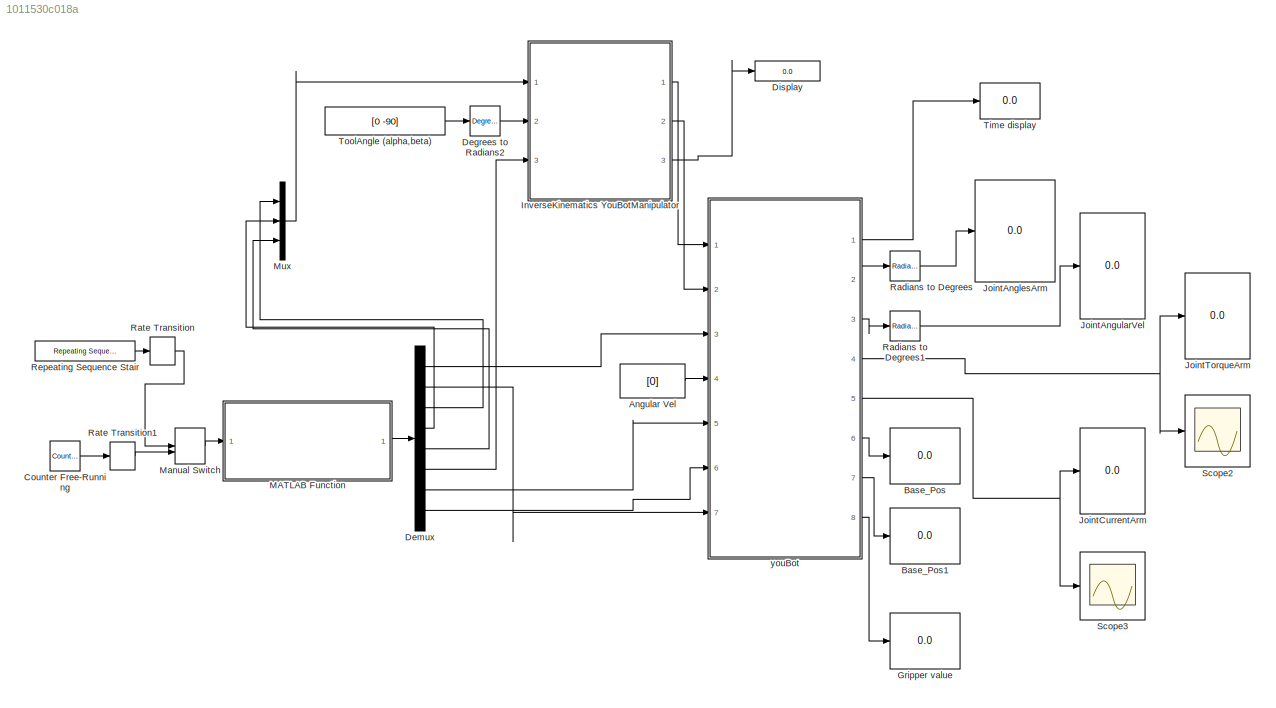
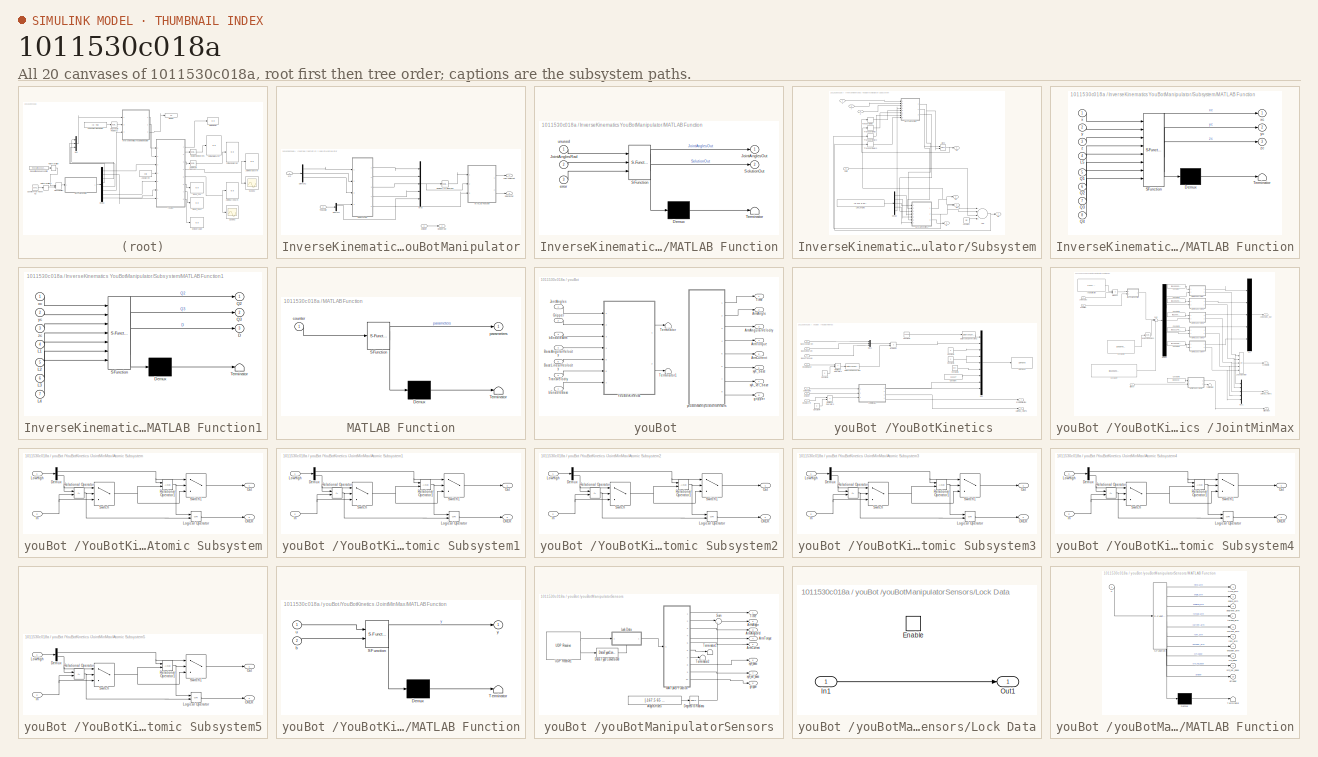
[diagram: thumbnail index - all 20 canvases of the model, root first then tree order]
MODEL slx_1011530c018a
KIND model
CONFIG AbsTol = auto
CONFIG EnableMultiTasking = on
CONFIG FixedStep = auto
CONFIG MaxStep = auto
CONFIG MinStep = auto
CONFIG RelTol = 1e-3
CONFIG SampleTimeConstraint = Unconstrained
CONFIG Solver = FixedStepAuto
CONFIG SolverName = FixedStepAuto
CONFIG StartTime = 0.0
CONFIG StopTime = inf
BLOCK [Constant] Angular Vel
  Value = [0]
BLOCK [Display] Base_Pos
  Decimation = 1
  Ports = [1]
BLOCK [Display] Base_Pos1
  Decimation = 1
  Ports = [1]
BLOCK [Reference] Counter Free-Running  REF=simulink/Sources/Counter
Free-Running
  Ports = [0, 1]
  SourceBlock = simulink/Sources/Counter\nFree-Running
  SourceProductBaseCode = SL
  SourceProductName = Simulink
  SourceType = Counter Free-Running
BLOCK [Reference] Degrees to Radians2  REF=simulink_extras/Transformations/Degrees to
Radians
  Ports = [1, 1]
  SourceBlock = simulink_extras/Transformations/Degrees to\nRadians
  SourceProductBaseCode = SL
  SourceProductName = Simulink
  SourceType = DegreesToRadians
BLOCK [Demux] Demux
  DisplayOption = bar
  Outputs = 8
  Ports = [1, 8]
BLOCK [Display] Display
  Decimation = 1
  Ports = [1]
BLOCK [Display] Gripper value
  Decimation = 1
  Ports = [1]
BLOCK [SubSystem] InverseKinematics YouBotManipulator
  Ports = [3, 3]
  RequestExecContextInheritance = off
  Variant = off
BLOCK [Demux] InverseKinematics YouBotManipulator/Demux1
  DisplayOption = bar
  Outputs = 2
  Ports = [1, 2]
BLOCK [Demux] InverseKinematics YouBotManipulator/Demux2
  DisplayOption = bar
  Outputs = 3
  Ports = [1, 3]
BLOCK [Inport] InverseKinematics YouBotManipulator/Gripper
  IconDisplay = Port number
  Port = 3
BLOCK [Outport] InverseKinematics YouBotManipulator/GripperOut 
  IconDisplay = Port number
  Port = 2
BLOCK [Outport] InverseKinematics YouBotManipulator/JointAnglesOut
  IconDisplay = Port number
BLOCK [SubSystem] InverseKinematics YouBotManipulator/MATLAB Function
  ErrorFcn = Stateflow.Translate.translate
  PermitHierarchicalResolution = ExplicitOnly
  Ports = [3, 2]
  RequestExecContextInheritance = off
  SFBlockType = MATLAB Function
  TreatAsAtomicUnit = on
  Variant = off
BLOCK [Demux] InverseKinematics YouBotManipulator/MATLAB Function/ Demux 
  Outputs = 1
  Ports = [1, 1]
BLOCK [S-Function] InverseKinematics YouBotManipulator/MATLAB Function/ SFunction 
  EnableBusSupport = on
  FunctionName = sf_sfun
  PortCounts = [3 3]
  Ports = [3, 3]
  SFcnIsStateOwnerBlock = off
  SFunctionDeploymentMode = off
  Tag = Stateflow S-Function FinalSimulinkBlock 13
BLOCK [Terminator] InverseKinematics YouBotManipulator/MATLAB Function/ Terminator 
BLOCK [Outport] InverseKinematics YouBotManipulator/MATLAB Function/JointAnglesOut
  IconDisplay = Port number
BLOCK [Inport] InverseKinematics YouBotManipulator/MATLAB Function/JointAnglesRad
  IconDisplay = Port number
  Port = 2
BLOCK [Outport] InverseKinematics YouBotManipulator/MATLAB Function/SolutionOut
  IconDisplay = Port number
  Port = 2
BLOCK [Inport] InverseKinematics YouBotManipulator/MATLAB Function/error
  IconDisplay = Port number
  Port = 3
BLOCK [Inport] InverseKinematics YouBotManipulator/MATLAB Function/unused
  IconDisplay = Port number
BLOCK [Mux] InverseKinematics YouBotManipulator/Mux
  DisplayOption = bar
  Inputs = 5
  Ports = [5, 1]
BLOCK [Reference] InverseKinematics YouBotManipulator/Radians to Degrees  REF=simulink_extras/Transformations/Radians
to Degrees
  Ports = [1, 1]
  SourceBlock = simulink_extras/Transformations/Radians\nto Degrees
  SourceProductBaseCode = SL
  SourceProductName = Simulink
  SourceType = RadiansToDegrees
BLOCK [Outport] InverseKinematics YouBotManipulator/SolutionOut
  IconDisplay = Port number
  Port = 3
BLOCK [SubSystem] InverseKinematics YouBotManipulator/Subsystem
  Ports = [4, 5]
  RequestExecContextInheritance = off
  Variant = off
BLOCK [Sum] InverseKinematics YouBotManipulator/Subsystem/Add
  InputSameDT = off
  Inputs = ---+
  OutDataTypeStr = Inherit: Inherit via internal rule
  Ports = [4, 1]
  SaturateOnIntegerOverflow = off
BLOCK [Trigonometry] InverseKinematics YouBotManipulator/Subsystem/Atan2
  Operator = atan2
  Ports = [2, 1]
BLOCK [Constant] InverseKinematics YouBotManipulator/Subsystem/Constant
  Value = pi/2
BLOCK [Outport] InverseKinematics YouBotManipulator/Subsystem/D
  IconDisplay = Port number
  Port = 5
BLOCK [Demux] InverseKinematics YouBotManipulator/Subsystem/Demux
  DisplayOption = bar
  Outputs = 5
  Ports = [1, 5]
BLOCK [Constant] InverseKinematics YouBotManipulator/Subsystem/Link Lengths
  Value = [0.147 0.046 0.155 0.135 0.218 ]
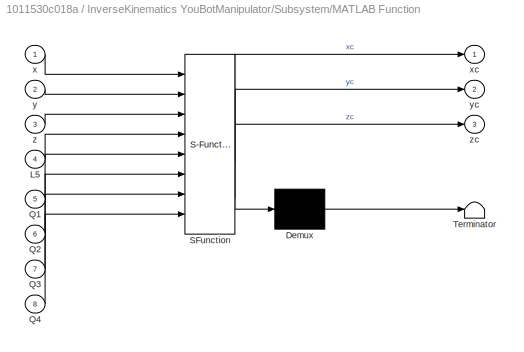
BLOCK [SubSystem] InverseKinematics YouBotManipulator/Subsystem/MATLAB Function
  ErrorFcn = Stateflow.Translate.translate
  PermitHierarchicalResolution = ExplicitOnly
  Ports = [8, 3]
  RequestExecContextInheritance = off
  SFBlockType = MATLAB Function
  TreatAsAtomicUnit = on
  Variant = off
BLOCK [Demux] InverseKinematics YouBotManipulator/Subsystem/MATLAB Function/ Demux 
  Outputs = 1
  Ports = [1, 1]
BLOCK [S-Function] InverseKinematics YouBotManipulator/Subsystem/MATLAB Function/ SFunction 
  EnableBusSupport = on
  FunctionName = sf_sfun
  PortCounts = [8 4]
  Ports = [8, 4]
  SFcnIsStateOwnerBlock = off
  SFunctionDeploymentMode = off
  Tag = Stateflow S-Function FinalSimulinkBlock 14
BLOCK [Terminator] InverseKinematics YouBotManipulator/Subsystem/MATLAB Function/ Terminator 
BLOCK [Inport] InverseKinematics YouBotManipulator/Subsystem/MATLAB Function/L5
  IconDisplay = Port number
  Port = 4
BLOCK [Inport] InverseKinematics YouBotManipulator/Subsystem/MATLAB Function/Q1
  IconDisplay = Port number
  Port = 5
BLOCK [Inport] InverseKinematics YouBotManipulator/Subsystem/MATLAB Function/Q2
  IconDisplay = Port number
  Port = 6
BLOCK [Inport] InverseKinematics YouBotManipulator/Subsystem/MATLAB Function/Q3
  IconDisplay = Port number
  Port = 7
BLOCK [Inport] InverseKinematics YouBotManipulator/Subsystem/MATLAB Function/Q4
  IconDisplay = Port number
  Port = 8
BLOCK [Inport] InverseKinematics YouBotManipulator/Subsystem/MATLAB Function/x
  IconDisplay = Port number
BLOCK [Outport] InverseKinematics YouBotManipulator/Subsystem/MATLAB Function/xc
  IconDisplay = Port number
BLOCK [Inport] InverseKinematics YouBotManipulator/Subsystem/MATLAB Function/y
  IconDisplay = Port number
  Port = 2
BLOCK [Outport] InverseKinematics YouBotManipulator/Subsystem/MATLAB Function/yc
  IconDisplay = Port number
  Port = 2
BLOCK [Inport] InverseKinematics YouBotManipulator/Subsystem/MATLAB Function/z
  IconDisplay = Port number
  Port = 3
BLOCK [Outport] InverseKinematics YouBotManipulator/Subsystem/MATLAB Function/zc
  IconDisplay = Port number
  Port = 3
BLOCK [SubSystem] InverseKinematics YouBotManipulator/Subsystem/MATLAB Function1
  ErrorFcn = Stateflow.Translate.translate
  PermitHierarchicalResolution = ExplicitOnly
  Ports = [7, 3]
  RequestExecContextInheritance = off
  SFBlockType = MATLAB Function
  TreatAsAtomicUnit = on
  Variant = off
BLOCK [Demux] InverseKinematics YouBotManipulator/Subsystem/MATLAB Function1/ Demux 
  Outputs = 1
  Ports = [1, 1]
BLOCK [S-Function] InverseKinematics YouBotManipulator/Subsystem/MATLAB Function1/ SFunction 
  EnableBusSupport = on
  FunctionName = sf_sfun
  PortCounts = [7 4]
  Ports = [7, 4]
  SFcnIsStateOwnerBlock = off
  SFunctionDeploymentMode = off
  Tag = Stateflow S-Function FinalSimulinkBlock 15
BLOCK [Terminator] InverseKinematics YouBotManipulator/Subsystem/MATLAB Function1/ Terminator 
BLOCK [Outport] InverseKinematics YouBotManipulator/Subsystem/MATLAB Function1/D
  IconDisplay = Port number
  Port = 3
BLOCK [Inport] InverseKinematics YouBotManipulator/Subsystem/MATLAB Function1/L1
  IconDisplay = Port number
  Port = 4
BLOCK [Inport] InverseKinematics YouBotManipulator/Subsystem/MATLAB Function1/L2
  IconDisplay = Port number
  Port = 5
BLOCK [Inport] InverseKinematics YouBotManipulator/Subsystem/MATLAB Function1/L3
  IconDisplay = Port number
  Port = 6
BLOCK [Inport] InverseKinematics YouBotManipulator/Subsystem/MATLAB Function1/L4
  IconDisplay = Port number
  Port = 7
BLOCK [Outport] InverseKinematics YouBotManipulator/Subsystem/MATLAB Function1/Q2
  IconDisplay = Port number
BLOCK [Outport] InverseKinematics YouBotManipulator/Subsystem/MATLAB Function1/Q3
  IconDisplay = Port number
  Port = 2
BLOCK [Inport] InverseKinematics YouBotManipulator/Subsystem/MATLAB Function1/xc
  IconDisplay = Port number
BLOCK [Inport] InverseKinematics YouBotManipulator/Subsystem/MATLAB Function1/yc
  IconDisplay = Port number
  Port = 2
BLOCK [Inport] InverseKinematics YouBotManipulator/Subsystem/MATLAB Function1/zc
  IconDisplay = Port number
  Port = 3
BLOCK [Outport] InverseKinematics YouBotManipulator/Subsystem/Q1
  IconDisplay = Port number
BLOCK [Outport] InverseKinematics YouBotManipulator/Subsystem/Q2
  IconDisplay = Port number
  Port = 2
BLOCK [Outport] InverseKinematics YouBotManipulator/Subsystem/Q3
  IconDisplay = Port number
  Port = 3
BLOCK [Outport] InverseKinematics YouBotManipulator/Subsystem/Q4
  IconDisplay = Port number
  Port = 4
BLOCK [TransportDelay] InverseKinematics YouBotManipulator/Subsystem/Transport Delay
  Ports = [1, 1]
BLOCK [TransportDelay] InverseKinematics YouBotManipulator/Subsystem/Transport Delay1
  Ports = [1, 1]
BLOCK [TransportDelay] InverseKinematics YouBotManipulator/Subsystem/Transport Delay2
  Ports = [1, 1]
BLOCK [TransportDelay] InverseKinematics YouBotManipulator/Subsystem/Transport Delay3
  Ports = [1, 1]
BLOCK [Inport] InverseKinematics YouBotManipulator/Subsystem/beta
  IconDisplay = Port number
  Port = 4
BLOCK [Inport] InverseKinematics YouBotManipulator/Subsystem/x
  IconDisplay = Port number
BLOCK [Inport] InverseKinematics YouBotManipulator/Subsystem/y
  IconDisplay = Port number
  Port = 2
BLOCK [Inport] InverseKinematics YouBotManipulator/Subsystem/z
  IconDisplay = Port number
  Port = 3
BLOCK [Inport] InverseKinematics YouBotManipulator/ToolAngle
  IconDisplay = Port number
  Port = 2
BLOCK [Inport] InverseKinematics YouBotManipulator/xyz 
  IconDisplay = Port number
BLOCK [Display] JointAnglesArm
  Decimation = 1
  Ports = [1]
BLOCK [Display] JointAngularVel
  Decimation = 1
  Ports = [1]
BLOCK [Display] JointCurrentArm
  Decimation = 1
  Ports = [1]
BLOCK [Display] JointTorqueArm 
  Decimation = 1
  Ports = [1]
BLOCK [SubSystem] MATLAB Function
  ErrorFcn = Stateflow.Translate.translate
  PermitHierarchicalResolution = ExplicitOnly
  Ports = [1, 1]
  RequestExecContextInheritance = off
  SFBlockType = MATLAB Function
  TreatAsAtomicUnit = on
  Variant = off
BLOCK [Demux] MATLAB Function/ Demux 
  Outputs = 1
  Ports = [1, 1]
BLOCK [S-Function] MATLAB Function/ SFunction 
  EnableBusSupport = on
  FunctionName = sf_sfun
  PortCounts = [1 2]
  Ports = [1, 2]
  SFcnIsStateOwnerBlock = off
  SFunctionDeploymentMode = off
  Tag = Stateflow S-Function FinalSimulinkBlock 1
BLOCK [Terminator] MATLAB Function/ Terminator 
BLOCK [Inport] MATLAB Function/counter
  IconDisplay = Port number
BLOCK [Outport] MATLAB Function/parameters
  IconDisplay = Port number
BLOCK [ManualSwitch] Manual Switch
  CurrentSetting = 0
BLOCK [Mux] Mux
  DisplayOption = bar
  Inputs = 3
  Ports = [3, 1]
BLOCK [Reference] Radians to Degrees  REF=simulink_extras/Transformations/Radians
to Degrees
  Ports = [1, 1]
  SourceBlock = simulink_extras/Transformations/Radians\nto Degrees
  SourceProductBaseCode = SL
  SourceProductName = Simulink
  SourceType = RadiansToDegrees
BLOCK [Reference] Radians to Degrees1  REF=simulink_extras/Transformations/Radians
to Degrees
  Ports = [1, 1]
  SourceBlock = simulink_extras/Transformations/Radians\nto Degrees
  SourceProductBaseCode = SL
  SourceProductName = Simulink
  SourceType = RadiansToDegrees
BLOCK [RateTransition] Rate Transition
BLOCK [RateTransition] Rate Transition1
BLOCK [Reference] Repeating Sequence Stair  REF=simulink/Sources/Repeating
Sequence
Stair
  Ports = [0, 1]
  SourceBlock = simulink/Sources/Repeating\nSequence\nStair
  SourceProductBaseCode = SL
  SourceProductName = Simulink
  SourceType = Repeating Sequence Stair
BLOCK [Scope] Scope2
  NumInputPorts = 1
  Ports = [1]
  ScopeSpecificationString = Simulink.scopes.TimeScopeBlockCfg('CurrentConfiguration', extmgr.ConfigurationSet(extmgr.Configuration('Core','General UI',true),extmgr.Configuration('Core','Source UI',true),extmgr.Configuration('Sources','WiredSimulink',true,'DataLoggingVariableName','ScopeData1','DataLoggingSaveFormat','StructureWithTime','DataLoggingLimitDataPoints',true,'DataLoggingDecimation','1','DataLoggingDecimateData',tr...<+1786ch>
BLOCK [Scope] Scope3
  NumInputPorts = 1
  Ports = [1]
  ScopeSpecificationString = Simulink.scopes.TimeScopeBlockCfg('CurrentConfiguration', extmgr.ConfigurationSet(extmgr.Configuration('Core','General UI',true),extmgr.Configuration('Core','Source UI',true),extmgr.Configuration('Sources','WiredSimulink',true,'DataLoggingSaveFormat','StructureWithTime','DataLoggingLimitDataPoints',true,'DataLoggingDecimation','1','DataLoggingDecimateData',true),extmgr.Configuration('Visuals','Tim...<+872ch>
BLOCK [Display] Time display
  Decimation = 1
  Ports = [1]
BLOCK [Constant] ToolAngle (alpha,beta)
  Value = [0 -90]
BLOCK [SubSystem] youBot 
  Ports = [7, 8]
  RequestExecContextInheritance = off
  TreatAsAtomicUnit = on
  Variant = off
BLOCK [Outport] youBot /ArmAngle
  IconDisplay = Port number
  Port = 2
BLOCK [Outport] youBot /ArmAngularVelocity
  IconDisplay = Port number
  Port = 3
BLOCK [Outport] youBot /ArmCurrent
  IconDisplay = Port number
  Port = 5
BLOCK [Outport] youBot /ArmTorque
  IconDisplay = Port number
  Port = 4
BLOCK [Inport] youBot /BaseAngularVelocity 
  IconDisplay = Port number
  Port = 4
BLOCK [Inport] youBot /BaseLinearVeolocity
  IconDisplay = Port number
  Port = 5
BLOCK [Inport] youBot /Gripper
  IconDisplay = Port number
  Port = 2
BLOCK [Inport] youBot /JontAngles
  IconDisplay = Port number
BLOCK [Terminator] youBot /Terminator
BLOCK [Terminator] youBot /Terminator1
BLOCK [Outport] youBot /Time
  IconDisplay = Port number
BLOCK [Inport] youBot /TransVelocity
  IconDisplay = Port number
  Port = 6
BLOCK [SubSystem] youBot /YouBotKinetics 
  Ports = [7, 2]
  RequestExecContextInheritance = off
  Variant = off
BLOCK [Inport] youBot /YouBotKinetics /BaseAngularVel
  IconDisplay = Port number
  Port = 4
BLOCK [Inport] youBot /YouBotKinetics /BaseLinearVel
  IconDisplay = Port number
  Port = 5
BLOCK [Inport] youBot /YouBotKinetics /BaseTransVel
  IconDisplay = Port number
  Port = 6
BLOCK [Constant] youBot /YouBotKinetics /Constant
  Value = 111117
BLOCK [Constant] youBot /YouBotKinetics /Constant1
  Value = 21930
BLOCK [Constant] youBot /YouBotKinetics /Constant2
  Value = 0
BLOCK [Constant] youBot /YouBotKinetics /Constant3
  Value = 0
BLOCK [Constant] youBot /YouBotKinetics /Constant4
  Value = 0
BLOCK [Constant] youBot /YouBotKinetics /Constant5
  Value = 0
BLOCK [Constant] youBot /YouBotKinetics /Constant6
  Value = [0 0]
BLOCK [DataTypeConversion] youBot /YouBotKinetics /Data Type Conversion
  RndMeth = Floor
  SaturateOnIntegerOverflow = off
BLOCK [DataTypeConversion] youBot /YouBotKinetics /Data Type Conversion2
  OutDataTypeStr = double
  RndMeth = Floor
  SaturateOnIntegerOverflow = off
BLOCK [Inport] youBot /YouBotKinetics /EnableArm
  IconDisplay = Port number
  Port = 3
BLOCK [Inport] youBot /YouBotKinetics /EnableBase 
  IconDisplay = Port number
  Port = 7
BLOCK [Inport] youBot /YouBotKinetics /Gripper
  IconDisplay = Port number
  Port = 2
BLOCK [Inport] youBot /YouBotKinetics /JointAngles
  IconDisplay = Port number
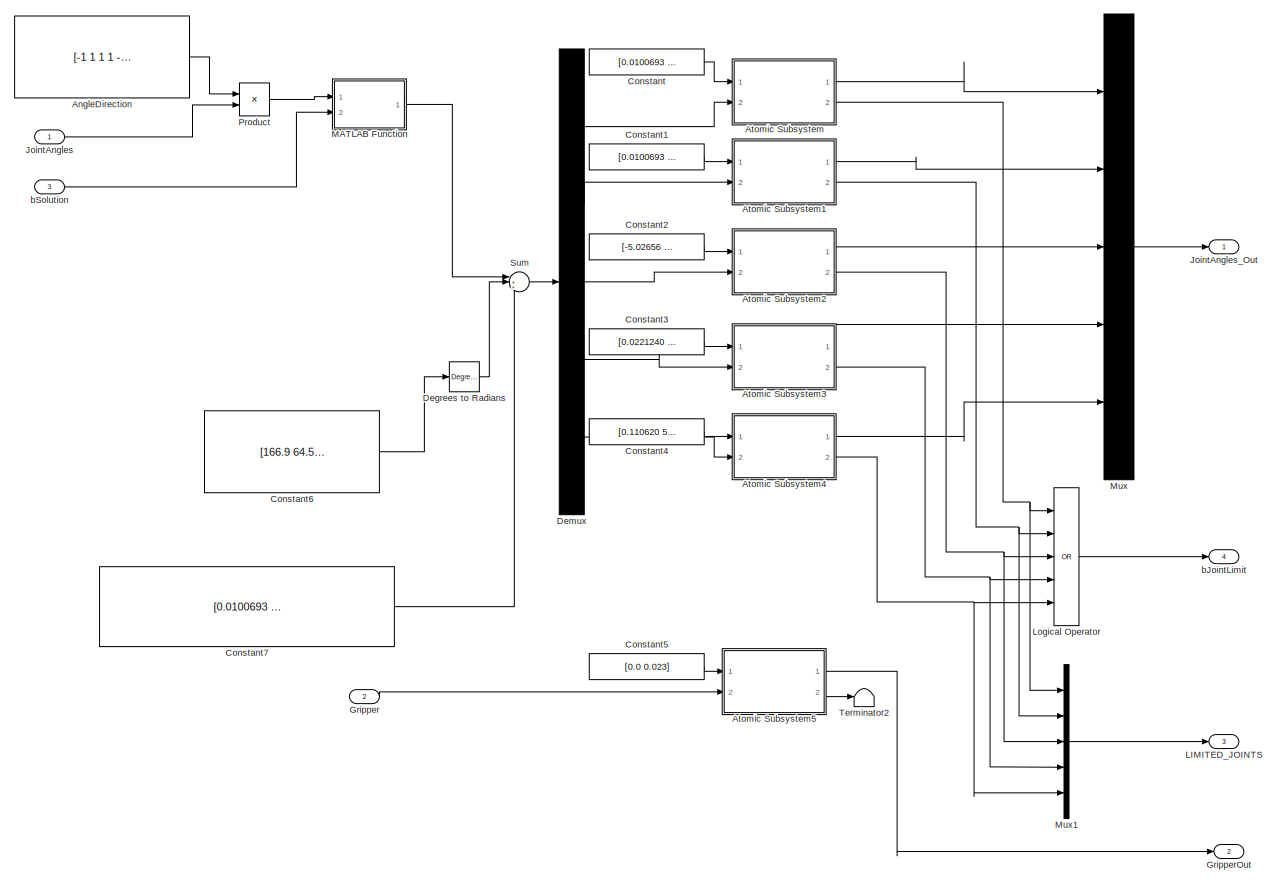
[diagram: youBot /YouBotKinetics /JointMinMax - part 1/1, most of the canvas]
BLOCK [SubSystem] youBot /YouBotKinetics /JointMinMax
  Ports = [3, 4]
  RequestExecContextInheritance = off
  Variant = off
BLOCK [Constant] youBot /YouBotKinetics /JointMinMax/AngleDirection
  Value = [-1 1 1 1 -1]
BLOCK [SubSystem] youBot /YouBotKinetics /JointMinMax/Atomic Subsystem
  Ports = [2, 2]
  RequestExecContextInheritance = off
  TreatAsAtomicUnit = on
  Variant = off
BLOCK [Demux] youBot /YouBotKinetics /JointMinMax/Atomic Subsystem/Demux
  DisplayOption = bar
  Outputs = 2
  Ports = [1, 2]
BLOCK [Inport] youBot /YouBotKinetics /JointMinMax/Atomic Subsystem/In
  IconDisplay = Port number
  Port = 2
BLOCK [Logic] youBot /YouBotKinetics /JointMinMax/Atomic Subsystem/Logical Operator
  AllPortsSameDT = off
  Operator = OR
  OutDataTypeStr = boolean
  Ports = [2, 1]
BLOCK [Inport] youBot /YouBotKinetics /JointMinMax/Atomic Subsystem/LowHigh
  IconDisplay = Port number
BLOCK [Outport] youBot /YouBotKinetics /JointMinMax/Atomic Subsystem/OVER
  IconDisplay = Port number
  Port = 2
BLOCK [Outport] youBot /YouBotKinetics /JointMinMax/Atomic Subsystem/Out
  IconDisplay = Port number
BLOCK [RelationalOperator] youBot /YouBotKinetics /JointMinMax/Atomic Subsystem/Relational Operator
  InputSameDT = off
  Operator = <=
  OutDataTypeStr = boolean
  Ports = [2, 1]
BLOCK [RelationalOperator] youBot /YouBotKinetics /JointMinMax/Atomic Subsystem/Relational Operator1
  InputSameDT = off
  OutDataTypeStr = boolean
  Ports = [2, 1]
BLOCK [Switch] youBot /YouBotKinetics /JointMinMax/Atomic Subsystem/Switch
  InputSameDT = off
  SaturateOnIntegerOverflow = off
BLOCK [Switch] youBot /YouBotKinetics /JointMinMax/Atomic Subsystem/Switch1
  InputSameDT = off
  SaturateOnIntegerOverflow = off
BLOCK [SubSystem] youBot /YouBotKinetics /JointMinMax/Atomic Subsystem1
  Ports = [2, 2]
  RequestExecContextInheritance = off
  TreatAsAtomicUnit = on
  Variant = off
BLOCK [Demux] youBot /YouBotKinetics /JointMinMax/Atomic Subsystem1/Demux
  DisplayOption = bar
  Outputs = 2
  Ports = [1, 2]
BLOCK [Inport] youBot /YouBotKinetics /JointMinMax/Atomic Subsystem1/In
  IconDisplay = Port number
  Port = 2
BLOCK [Logic] youBot /YouBotKinetics /JointMinMax/Atomic Subsystem1/Logical Operator
  AllPortsSameDT = off
  Operator = OR
  OutDataTypeStr = boolean
  Ports = [2, 1]
BLOCK [Inport] youBot /YouBotKinetics /JointMinMax/Atomic Subsystem1/LowHigh
  IconDisplay = Port number
BLOCK [Outport] youBot /YouBotKinetics /JointMinMax/Atomic Subsystem1/OVER
  IconDisplay = Port number
  Port = 2
BLOCK [Outport] youBot /YouBotKinetics /JointMinMax/Atomic Subsystem1/Out
  IconDisplay = Port number
BLOCK [RelationalOperator] youBot /YouBotKinetics /JointMinMax/Atomic Subsystem1/Relational Operator
  InputSameDT = off
  Operator = <=
  OutDataTypeStr = boolean
  Ports = [2, 1]
BLOCK [RelationalOperator] youBot /YouBotKinetics /JointMinMax/Atomic Subsystem1/Relational Operator1
  InputSameDT = off
  OutDataTypeStr = boolean
  Ports = [2, 1]
BLOCK [Switch] youBot /YouBotKinetics /JointMinMax/Atomic Subsystem1/Switch
  InputSameDT = off
  SaturateOnIntegerOverflow = off
BLOCK [Switch] youBot /YouBotKinetics /JointMinMax/Atomic Subsystem1/Switch1
  InputSameDT = off
  SaturateOnIntegerOverflow = off
BLOCK [SubSystem] youBot /YouBotKinetics /JointMinMax/Atomic Subsystem2
  Ports = [2, 2]
  RequestExecContextInheritance = off
  TreatAsAtomicUnit = on
  Variant = off
BLOCK [Demux] youBot /YouBotKinetics /JointMinMax/Atomic Subsystem2/Demux
  DisplayOption = bar
  Outputs = 2
  Ports = [1, 2]
BLOCK [Inport] youBot /YouBotKinetics /JointMinMax/Atomic Subsystem2/In
  IconDisplay = Port number
  Port = 2
BLOCK [Logic] youBot /YouBotKinetics /JointMinMax/Atomic Subsystem2/Logical Operator
  AllPortsSameDT = off
  Operator = OR
  OutDataTypeStr = boolean
  Ports = [2, 1]
BLOCK [Inport] youBot /YouBotKinetics /JointMinMax/Atomic Subsystem2/LowHigh
  IconDisplay = Port number
BLOCK [Outport] youBot /YouBotKinetics /JointMinMax/Atomic Subsystem2/OVER
  IconDisplay = Port number
  Port = 2
BLOCK [Outport] youBot /YouBotKinetics /JointMinMax/Atomic Subsystem2/Out
  IconDisplay = Port number
BLOCK [RelationalOperator] youBot /YouBotKinetics /JointMinMax/Atomic Subsystem2/Relational Operator
  InputSameDT = off
  Operator = <=
  OutDataTypeStr = boolean
  Ports = [2, 1]
BLOCK [RelationalOperator] youBot /YouBotKinetics /JointMinMax/Atomic Subsystem2/Relational Operator1
  InputSameDT = off
  OutDataTypeStr = boolean
  Ports = [2, 1]
BLOCK [Switch] youBot /YouBotKinetics /JointMinMax/Atomic Subsystem2/Switch
  InputSameDT = off
  SaturateOnIntegerOverflow = off
BLOCK [Switch] youBot /YouBotKinetics /JointMinMax/Atomic Subsystem2/Switch1
  InputSameDT = off
  SaturateOnIntegerOverflow = off
BLOCK [SubSystem] youBot /YouBotKinetics /JointMinMax/Atomic Subsystem3
  Ports = [2, 2]
  RequestExecContextInheritance = off
  TreatAsAtomicUnit = on
  Variant = off
BLOCK [Demux] youBot /YouBotKinetics /JointMinMax/Atomic Subsystem3/Demux
  DisplayOption = bar
  Outputs = 2
  Ports = [1, 2]
BLOCK [Inport] youBot /YouBotKinetics /JointMinMax/Atomic Subsystem3/In
  IconDisplay = Port number
  Port = 2
BLOCK [Logic] youBot /YouBotKinetics /JointMinMax/Atomic Subsystem3/Logical Operator
  AllPortsSameDT = off
  Operator = OR
  OutDataTypeStr = boolean
  Ports = [2, 1]
BLOCK [Inport] youBot /YouBotKinetics /JointMinMax/Atomic Subsystem3/LowHigh
  IconDisplay = Port number
BLOCK [Outport] youBot /YouBotKinetics /JointMinMax/Atomic Subsystem3/OVER
  IconDisplay = Port number
  Port = 2
BLOCK [Outport] youBot /YouBotKinetics /JointMinMax/Atomic Subsystem3/Out
  IconDisplay = Port number
BLOCK [RelationalOperator] youBot /YouBotKinetics /JointMinMax/Atomic Subsystem3/Relational Operator
  InputSameDT = off
  Operator = <=
  OutDataTypeStr = boolean
  Ports = [2, 1]
BLOCK [RelationalOperator] youBot /YouBotKinetics /JointMinMax/Atomic Subsystem3/Relational Operator1
  InputSameDT = off
  OutDataTypeStr = boolean
  Ports = [2, 1]
BLOCK [Switch] youBot /YouBotKinetics /JointMinMax/Atomic Subsystem3/Switch
  InputSameDT = off
  SaturateOnIntegerOverflow = off
BLOCK [Switch] youBot /YouBotKinetics /JointMinMax/Atomic Subsystem3/Switch1
  InputSameDT = off
  SaturateOnIntegerOverflow = off
BLOCK [SubSystem] youBot /YouBotKinetics /JointMinMax/Atomic Subsystem4
  Ports = [2, 2]
  RequestExecContextInheritance = off
  TreatAsAtomicUnit = on
  Variant = off
BLOCK [Demux] youBot /YouBotKinetics /JointMinMax/Atomic Subsystem4/Demux
  DisplayOption = bar
  Outputs = 2
  Ports = [1, 2]
BLOCK [Inport] youBot /YouBotKinetics /JointMinMax/Atomic Subsystem4/In
  IconDisplay = Port number
  Port = 2
BLOCK [Logic] youBot /YouBotKinetics /JointMinMax/Atomic Subsystem4/Logical Operator
  AllPortsSameDT = off
  Operator = OR
  OutDataTypeStr = boolean
  Ports = [2, 1]
BLOCK [Inport] youBot /YouBotKinetics /JointMinMax/Atomic Subsystem4/LowHigh
  IconDisplay = Port number
BLOCK [Outport] youBot /YouBotKinetics /JointMinMax/Atomic Subsystem4/OVER
  IconDisplay = Port number
  Port = 2
BLOCK [Outport] youBot /YouBotKinetics /JointMinMax/Atomic Subsystem4/Out
  IconDisplay = Port number
BLOCK [RelationalOperator] youBot /YouBotKinetics /JointMinMax/Atomic Subsystem4/Relational Operator
  InputSameDT = off
  Operator = <=
  OutDataTypeStr = boolean
  Ports = [2, 1]
BLOCK [RelationalOperator] youBot /YouBotKinetics /JointMinMax/Atomic Subsystem4/Relational Operator1
  InputSameDT = off
  OutDataTypeStr = boolean
  Ports = [2, 1]
BLOCK [Switch] youBot /YouBotKinetics /JointMinMax/Atomic Subsystem4/Switch
  InputSameDT = off
  SaturateOnIntegerOverflow = off
BLOCK [Switch] youBot /YouBotKinetics /JointMinMax/Atomic Subsystem4/Switch1
  InputSameDT = off
  SaturateOnIntegerOverflow = off
BLOCK [SubSystem] youBot /YouBotKinetics /JointMinMax/Atomic Subsystem5
  Ports = [2, 2]
  RequestExecContextInheritance = off
  TreatAsAtomicUnit = on
  Variant = off
BLOCK [Demux] youBot /YouBotKinetics /JointMinMax/Atomic Subsystem5/Demux
  DisplayOption = bar
  Outputs = 2
  Ports = [1, 2]
BLOCK [Inport] youBot /YouBotKinetics /JointMinMax/Atomic Subsystem5/In
  IconDisplay = Port number
  Port = 2
BLOCK [Logic] youBot /YouBotKinetics /JointMinMax/Atomic Subsystem5/Logical Operator
  AllPortsSameDT = off
  Operator = OR
  OutDataTypeStr = boolean
  Ports = [2, 1]
BLOCK [Inport] youBot /YouBotKinetics /JointMinMax/Atomic Subsystem5/LowHigh
  IconDisplay = Port number
BLOCK [Outport] youBot /YouBotKinetics /JointMinMax/Atomic Subsystem5/OVER
  IconDisplay = Port number
  Port = 2
BLOCK [Outport] youBot /YouBotKinetics /JointMinMax/Atomic Subsystem5/Out
  IconDisplay = Port number
BLOCK [RelationalOperator] youBot /YouBotKinetics /JointMinMax/Atomic Subsystem5/Relational Operator
  InputSameDT = off
  Operator = <=
  OutDataTypeStr = boolean
  Ports = [2, 1]
BLOCK [RelationalOperator] youBot /YouBotKinetics /JointMinMax/Atomic Subsystem5/Relational Operator1
  InputSameDT = off
  OutDataTypeStr = boolean
  Ports = [2, 1]
BLOCK [Switch] youBot /YouBotKinetics /JointMinMax/Atomic Subsystem5/Switch
  InputSameDT = off
  SaturateOnIntegerOverflow = off
BLOCK [Switch] youBot /YouBotKinetics /JointMinMax/Atomic Subsystem5/Switch1
  InputSameDT = off
  SaturateOnIntegerOverflow = off
BLOCK [Constant] youBot /YouBotKinetics /JointMinMax/Constant
  Value = [0.0100693 5.84013]
BLOCK [Constant] youBot /YouBotKinetics /JointMinMax/Constant1
  Value = [0.0100693 2.61798]
BLOCK [Constant] youBot /YouBotKinetics /JointMinMax/Constant2
  Value = [-5.02656  -0.015708]
BLOCK [Constant] youBot /YouBotKinetics /JointMinMax/Constant3
  Value = [0.0221240 3.4291]
BLOCK [Constant] youBot /YouBotKinetics /JointMinMax/Constant4
  Value = [0.110620 5.64158]
BLOCK [Constant] youBot /YouBotKinetics /JointMinMax/Constant5
  Value = [0.0 0.023]
BLOCK [Constant] youBot /YouBotKinetics /JointMinMax/Constant6
  Value = [166.9 64.5 -143 98 164]
BLOCK [Constant] youBot /YouBotKinetics /JointMinMax/Constant7
  Value = [0.0100693 0.0100693 -0.015708 0.0221240 0.110620]
BLOCK [Reference] youBot /YouBotKinetics /JointMinMax/Degrees to Radians  REF=simulink_extras/Transformations/Degrees to
Radians
  Ports = [1, 1]
  SourceBlock = simulink_extras/Transformations/Degrees to\nRadians
  SourceProductBaseCode = SL
  SourceProductName = Simulink
  SourceType = DegreesToRadians
BLOCK [Demux] youBot /YouBotKinetics /JointMinMax/Demux
  DisplayOption = bar
  Outputs = [ 1 1 1 1 1]
  Ports = [1, 5]
BLOCK [Inport] youBot /YouBotKinetics /JointMinMax/Gripper
  IconDisplay = Port number
  Port = 2
BLOCK [Outport] youBot /YouBotKinetics /JointMinMax/GripperOut
  IconDisplay = Port number
  Port = 2
BLOCK [Inport] youBot /YouBotKinetics /JointMinMax/JointAngles
  IconDisplay = Port number
BLOCK [Outport] youBot /YouBotKinetics /JointMinMax/JointAngles_Out
  IconDisplay = Port number
BLOCK [Outport] youBot /YouBotKinetics /JointMinMax/LIMITED_JOINTS 
  IconDisplay = Port number
  Port = 3
BLOCK [Logic] youBot /YouBotKinetics /JointMinMax/Logical Operator
  AllPortsSameDT = off
  Inputs = 5
  Operator = OR
  OutDataTypeStr = boolean
  Ports = [5, 1]
BLOCK [SubSystem] youBot /YouBotKinetics /JointMinMax/MATLAB Function
  ErrorFcn = Stateflow.Translate.translate
  PermitHierarchicalResolution = ExplicitOnly
  Ports = [2, 1]
  RequestExecContextInheritance = off
  SFBlockType = MATLAB Function
  TreatAsAtomicUnit = on
  Variant = off
BLOCK [Demux] youBot /YouBotKinetics /JointMinMax/MATLAB Function/ Demux 
  Outputs = 1
  Ports = [1, 1]
BLOCK [S-Function] youBot /YouBotKinetics /JointMinMax/MATLAB Function/ SFunction 
  EnableBusSupport = on
  FunctionName = sf_sfun
  PortCounts = [2 2]
  Ports = [2, 2]
  SFcnIsStateOwnerBlock = off
  SFunctionDeploymentMode = off
  Tag = Stateflow S-Function FinalSimulinkBlock 2
BLOCK [Terminator] youBot /YouBotKinetics /JointMinMax/MATLAB Function/ Terminator 
BLOCK [Inport] youBot /YouBotKinetics /JointMinMax/MATLAB Function/b
  IconDisplay = Port number
  Port = 2
BLOCK [Inport] youBot /YouBotKinetics /JointMinMax/MATLAB Function/u
  IconDisplay = Port number
BLOCK [Outport] youBot /YouBotKinetics /JointMinMax/MATLAB Function/y
  IconDisplay = Port number
BLOCK [Mux] youBot /YouBotKinetics /JointMinMax/Mux
  DisplayOption = bar
  Inputs = [1 1 1 1 1]
  Ports = [5, 1]
BLOCK [Mux] youBot /YouBotKinetics /JointMinMax/Mux1
  DisplayOption = bar
  Inputs = 5
  Ports = [5, 1]
BLOCK [Product] youBot /YouBotKinetics /JointMinMax/Product
  InputSameDT = off
  OutDataTypeStr = Inherit: Inherit via internal rule
  Ports = [2, 1]
  RndMeth = Floor
  SaturateOnIntegerOverflow = off
BLOCK [Sum] youBot /YouBotKinetics /JointMinMax/Sum
  IconShape = round
  InputSameDT = off
  Inputs = |+++
  OutDataTypeStr = Inherit: Inherit via internal rule
  Ports = [3, 1]
  SaturateOnIntegerOverflow = off
BLOCK [Terminator] youBot /YouBotKinetics /JointMinMax/Terminator2
BLOCK [Outport] youBot /YouBotKinetics /JointMinMax/bJointLimit 
  IconDisplay = Port number
  Port = 4
BLOCK [Inport] youBot /YouBotKinetics /JointMinMax/bSolution
  IconDisplay = Port number
  Port = 3
BLOCK [Outport] youBot /YouBotKinetics /LIMITED_JOINTS 
  IconDisplay = Port number
  Port = 2
BLOCK [Mux] youBot /YouBotKinetics /Mux
  DisplayOption = bar
  Inputs = [1 3 1 1 1 2 1 5 1]
  Ports = [9, 1]
BLOCK [Mux] youBot /YouBotKinetics /Mux1
  DisplayOption = bar
  Inputs = [1 1 1]
  Ports = [3, 1]
BLOCK [Product] youBot /YouBotKinetics /Product
  InputSameDT = off
  OutDataTypeStr = Inherit: Inherit via internal rule
  Ports = [2, 1]
  RndMeth = Floor
  SaturateOnIntegerOverflow = off
BLOCK [RelationalOperator] youBot /YouBotKinetics /Relational Operator1
  InputSameDT = off
  Operator = >
  OutDataTypeStr = boolean
  Ports = [2, 1]
BLOCK [RelationalOperator] youBot /YouBotKinetics /Relational Operator3
  InputSameDT = off
  Operator = >
  OutDataTypeStr = boolean
  Ports = [2, 1]
BLOCK [Reference] youBot /YouBotKinetics /UDP Send  REF=embdlinuxlib/UDP Send
  Ports = [1]
  SourceBlock = embdlinuxlib/UDP Send
  SourceProductBaseCode = RASPPI
  SourceProductName = Simulink Support Package for Raspberry Pi Hardware
  SourceType = UDP Send
BLOCK [Outport] youBot /YouBotKinetics /bJointLimitActive
  IconDisplay = Port number
BLOCK [Inport] youBot /bEnableArm
  IconDisplay = Port number
  Port = 3
BLOCK [Inport] youBot /bEnableBase
  IconDisplay = Port number
  Port = 7
BLOCK [Outport] youBot /gripper
  IconDisplay = Port number
  Port = 8
BLOCK [Outport] youBot /xyh_base
  IconDisplay = Port number
  Port = 6
BLOCK [Outport] youBot /xyh_vel_base
  IconDisplay = Port number
  Port = 7
BLOCK [SubSystem] youBot /youBotManipulatorSensors
  Ports = [0, 8]
  RequestExecContextInheritance = off
  Variant = off
BLOCK [Constant] youBot /youBotManipulatorSensors/AngleOffsets
  Value = [-167.5 65 -143.9 99.27 -170]
BLOCK [Outport] youBot /youBotManipulatorSensors/ArmAngle
  IconDisplay = Port number
  Port = 2
BLOCK [Outport] youBot /youBotManipulatorSensors/ArmAngleVel
  IconDisplay = Port number
  Port = 3
BLOCK [Outport] youBot /youBotManipulatorSensors/ArmCurrent 
  IconDisplay = Port number
  Port = 5
BLOCK [Outport] youBot /youBotManipulatorSensors/ArmTorque
  IconDisplay = Port number
  Port = 4
BLOCK [DataTypeConversion] youBot /youBotManipulatorSensors/Data Type Conversion8
  RndMeth = Floor
  SaturateOnIntegerOverflow = off
BLOCK [Reference] youBot /youBotManipulatorSensors/Degrees to Radians  REF=simulink_extras/Transformations/Degrees to
Radians
  Ports = [1, 1]
  SourceBlock = simulink_extras/Transformations/Degrees to\nRadians
  SourceProductBaseCode = SL
  SourceProductName = Simulink
  SourceType = DegreesToRadians
BLOCK [SubSystem] youBot /youBotManipulatorSensors/Lock Data
  Ports = [1, 1, 1]
  RequestExecContextInheritance = off
  TreatAsAtomicUnit = on
  Variant = off
BLOCK [EnablePort] youBot /youBotManipulatorSensors/Lock Data/Enable
  Ports = []
BLOCK [Inport] youBot /youBotManipulatorSensors/Lock Data/In1
  IconDisplay = Port number
BLOCK [Outport] youBot /youBotManipulatorSensors/Lock Data/Out1
  IconDisplay = Port number
BLOCK [SubSystem] youBot /youBotManipulatorSensors/MATLAB Function
  ErrorFcn = Stateflow.Translate.translate
  PermitHierarchicalResolution = ExplicitOnly
  Ports = [1, 10]
  RequestExecContextInheritance = off
  SFBlockType = MATLAB Function
  TreatAsAtomicUnit = on
  Variant = off
BLOCK [Demux] youBot /youBotManipulatorSensors/MATLAB Function/ Demux 
  Outputs = 1
  Ports = [1, 1]
BLOCK [S-Function] youBot /youBotManipulatorSensors/MATLAB Function/ SFunction 
  EnableBusSupport = on
  FunctionName = sf_sfun
  PortCounts = [1 11]
  Ports = [1, 11]
  SFcnIsStateOwnerBlock = off
  SFunctionDeploymentMode = off
  Tag = Stateflow S-Function FinalSimulinkBlock 3
BLOCK [Terminator] youBot /youBotManipulatorSensors/MATLAB Function/ Terminator 
BLOCK [Outport] youBot /youBotManipulatorSensors/MATLAB Function/angle_arm
  IconDisplay = Port number
  Port = 2
BLOCK [Outport] youBot /youBotManipulatorSensors/MATLAB Function/anglevel_arm
  IconDisplay = Port number
  Port = 3
BLOCK [Outport] youBot /youBotManipulatorSensors/MATLAB Function/current_arm
  IconDisplay = Port number
  Port = 5
BLOCK [Outport] youBot /youBotManipulatorSensors/MATLAB Function/encoder_arm
  IconDisplay = Port number
  Port = 7
BLOCK [Outport] youBot /youBotManipulatorSensors/MATLAB Function/gripper
  IconDisplay = Port number
  Port = 10
BLOCK [Outport] youBot /youBotManipulatorSensors/MATLAB Function/rpm_arm
  IconDisplay = Port number
  Port = 6
BLOCK [Outport] youBot /youBotManipulatorSensors/MATLAB Function/time_arm
  IconDisplay = Port number
BLOCK [Outport] youBot /youBotManipulatorSensors/MATLAB Function/torque_arm
  IconDisplay = Port number
  Port = 4
BLOCK [Inport] youBot /youBotManipulatorSensors/MATLAB Function/u
  IconDisplay = Port number
BLOCK [Outport] youBot /youBotManipulatorSensors/MATLAB Function/xyh_base
  IconDisplay = Port number
  Port = 8
BLOCK [Outport] youBot /youBotManipulatorSensors/MATLAB Function/xyh_vel_base
  IconDisplay = Port number
  Port = 9
BLOCK [Sum] youBot /youBotManipulatorSensors/Sum
  IconShape = round
  InputSameDT = off
  Inputs = |+-
  OutDataTypeStr = Inherit: Inherit via internal rule
  Ports = [2, 1]
  SaturateOnIntegerOverflow = off
BLOCK [Terminator] youBot /youBotManipulatorSensors/Terminator1
BLOCK [Terminator] youBot /youBotManipulatorSensors/Terminator2
BLOCK [Outport] youBot /youBotManipulatorSensors/Time
  IconDisplay = Port number
BLOCK [Reference] youBot /youBotManipulatorSensors/UDP Receive1  REF=embdlinuxlib/UDP Receive
  Ports = [0, 2]
  SourceBlock = embdlinuxlib/UDP Receive
  SourceProductBaseCode = RASPPI
  SourceProductName = Simulink Support Package for Raspberry Pi Hardware
  SourceType = UDP Receive
BLOCK [Outport] youBot /youBotManipulatorSensors/gripper
  IconDisplay = Port number
  Port = 8
BLOCK [Outport] youBot /youBotManipulatorSensors/xyh_base
  IconDisplay = Port number
  Port = 6
BLOCK [Outport] youBot /youBotManipulatorSensors/xyh_vel_base
  IconDisplay = Port number
  Port = 7
LINE Angular Vel:1 -> youBot :4
LINE Counter Free-Running:1 -> Rate Transition1:1
LINE Degrees to Radians2:1 -> InverseKinematics YouBotManipulator:2
LINE Demux:1 -> youBot :3
LINE Demux:2 -> youBot :7
LINE Demux:3 -> Mux:1
LINE Demux:4 -> Mux:2
LINE Demux:5 -> Mux:3
LINE Demux:6 -> InverseKinematics YouBotManipulator:3
LINE Demux:7 -> youBot :5
LINE Demux:8 -> youBot :6
LINE InverseKinematics YouBotManipulator/Demux1:1 -> InverseKinematics YouBotManipulator/Mux:5
LINE InverseKinematics YouBotManipulator/Demux1:2 -> InverseKinematics YouBotManipulator/Subsystem:4
LINE InverseKinematics YouBotManipulator/Demux2:1 -> InverseKinematics YouBotManipulator/Subsystem:1
LINE InverseKinematics YouBotManipulator/Demux2:2 -> InverseKinematics YouBotManipulator/Subsystem:2
LINE InverseKinematics YouBotManipulator/Demux2:3 -> InverseKinematics YouBotManipulator/Subsystem:3
LINE InverseKinematics YouBotManipulator/Gripper:1 -> InverseKinematics YouBotManipulator/GripperOut :1
LINE InverseKinematics YouBotManipulator/MATLAB Function:1 -> InverseKinematics YouBotManipulator/JointAnglesOut:1
LINE InverseKinematics YouBotManipulator/MATLAB Function:2 -> InverseKinematics YouBotManipulator/SolutionOut:1
NET InverseKinematics YouBotManipulator/Mux:1 -> InverseKinematics YouBotManipulator/MATLAB Function:2, InverseKinematics YouBotManipulator/Radians to Degrees:1
LINE InverseKinematics YouBotManipulator/Radians to Degrees:1 -> InverseKinematics YouBotManipulator/MATLAB Function:1
NET InverseKinematics YouBotManipulator/Subsystem/Add:1 -> InverseKinematics YouBotManipulator/Subsystem/Q4:1, InverseKinematics YouBotManipulator/Subsystem/Transport Delay3:1
NET InverseKinematics YouBotManipulator/Subsystem/Atan2:1 -> InverseKinematics YouBotManipulator/Subsystem/Q1:1, InverseKinematics YouBotManipulator/Subsystem/Transport Delay:1
LINE InverseKinematics YouBotManipulator/Subsystem/Constant:1 -> InverseKinematics YouBotManipulator/Subsystem/Add:4
LINE InverseKinematics YouBotManipulator/Subsystem/Demux:1 -> InverseKinematics YouBotManipulator/Subsystem/MATLAB Function1:4
LINE InverseKinematics YouBotManipulator/Subsystem/Demux:2 -> InverseKinematics YouBotManipulator/Subsystem/MATLAB Function1:5
LINE InverseKinematics YouBotManipulator/Subsystem/Demux:3 -> InverseKinematics YouBotManipulator/Subsystem/MATLAB Function1:6
LINE InverseKinematics YouBotManipulator/Subsystem/Demux:4 -> InverseKinematics YouBotManipulator/Subsystem/MATLAB Function1:7
LINE InverseKinematics YouBotManipulator/Subsystem/Demux:5 -> InverseKinematics YouBotManipulator/Subsystem/MATLAB Function:4
LINE InverseKinematics YouBotManipulator/Subsystem/Link Lengths:1 -> InverseKinematics YouBotManipulator/Subsystem/Demux:1
NET InverseKinematics YouBotManipulator/Subsystem/MATLAB Function1:1 -> InverseKinematics YouBotManipulator/Subsystem/Add:1, InverseKinematics YouBotManipulator/Subsystem/Q2:1, InverseKinematics YouBotManipulator/Subsystem/Transport Delay1:1
NET InverseKinematics YouBotManipulator/Subsystem/MATLAB Function1:2 -> InverseKinematics YouBotManipulator/Subsystem/Add:2, InverseKinematics YouBotManipulator/Subsystem/Q3:1, InverseKinematics YouBotManipulator/Subsystem/Transport Delay2:1
LINE InverseKinematics YouBotManipulator/Subsystem/MATLAB Function1:3 -> InverseKinematics YouBotManipulator/Subsystem/D:1
NET InverseKinematics YouBotManipulator/Subsystem/MATLAB Function:1 -> InverseKinematics YouBotManipulator/Subsystem/Atan2:2, InverseKinematics YouBotManipulator/Subsystem/MATLAB Function1:1
NET InverseKinematics YouBotManipulator/Subsystem/MATLAB Function:2 -> InverseKinematics YouBotManipulator/Subsystem/Atan2:1, InverseKinematics YouBotManipulator/Subsystem/MATLAB Function1:2
LINE InverseKinematics YouBotManipulator/Subsystem/MATLAB Function:3 -> InverseKinematics YouBotManipulator/Subsystem/MATLAB Function1:3
LINE InverseKinematics YouBotManipulator/Subsystem/Transport Delay1:1 -> InverseKinematics YouBotManipulator/Subsystem/MATLAB Function:6
LINE InverseKinematics YouBotManipulator/Subsystem/Transport Delay2:1 -> InverseKinematics YouBotManipulator/Subsystem/MATLAB Function:7
LINE InverseKinematics YouBotManipulator/Subsystem/Transport Delay3:1 -> InverseKinematics YouBotManipulator/Subsystem/MATLAB Function:8
LINE InverseKinematics YouBotManipulator/Subsystem/Transport Delay:1 -> InverseKinematics YouBotManipulator/Subsystem/MATLAB Function:5
LINE InverseKinematics YouBotManipulator/Subsystem/beta:1 -> InverseKinematics YouBotManipulator/Subsystem/Add:3
LINE InverseKinematics YouBotManipulator/Subsystem/x:1 -> InverseKinematics YouBotManipulator/Subsystem/MATLAB Function:1
LINE InverseKinematics YouBotManipulator/Subsystem/y:1 -> InverseKinematics YouBotManipulator/Subsystem/MATLAB Function:2
LINE InverseKinematics YouBotManipulator/Subsystem/z:1 -> InverseKinematics YouBotManipulator/Subsystem/MATLAB Function:3
LINE InverseKinematics YouBotManipulator/Subsystem:1 -> InverseKinematics YouBotManipulator/Mux:1
LINE InverseKinematics YouBotManipulator/Subsystem:2 -> InverseKinematics YouBotManipulator/Mux:2
LINE InverseKinematics YouBotManipulator/Subsystem:3 -> InverseKinematics YouBotManipulator/Mux:3
LINE InverseKinematics YouBotManipulator/Subsystem:4 -> InverseKinematics YouBotManipulator/Mux:4
LINE InverseKinematics YouBotManipulator/Subsystem:5 -> InverseKinematics YouBotManipulator/MATLAB Function:3
LINE InverseKinematics YouBotManipulator/ToolAngle:1 -> InverseKinematics YouBotManipulator/Demux1:1
LINE InverseKinematics YouBotManipulator/xyz :1 -> InverseKinematics YouBotManipulator/Demux2:1
LINE InverseKinematics YouBotManipulator:1 -> youBot :1
LINE InverseKinematics YouBotManipulator:2 -> youBot :2
LINE InverseKinematics YouBotManipulator:3 -> Display:1
LINE MATLAB Function:1 -> Demux:1
LINE Manual Switch:1 -> MATLAB Function:1
LINE Mux:1 -> InverseKinematics YouBotManipulator:1
LINE Radians to Degrees1:1 -> JointAngularVel:1
LINE Radians to Degrees:1 -> JointAnglesArm:1
LINE Rate Transition1:1 -> Manual Switch:2
LINE Rate Transition:1 -> Manual Switch:1
LINE Repeating Sequence Stair:1 -> Rate Transition:1
LINE ToolAngle (alpha,beta):1 -> Degrees to Radians2:1
LINE youBot /BaseAngularVelocity :1 -> youBot /YouBotKinetics :4
LINE youBot /BaseLinearVeolocity:1 -> youBot /YouBotKinetics :5
LINE youBot /Gripper:1 -> youBot /YouBotKinetics :2
LINE youBot /JontAngles:1 -> youBot /YouBotKinetics :1
LINE youBot /TransVelocity:1 -> youBot /YouBotKinetics :6
LINE youBot /YouBotKinetics /BaseAngularVel:1 -> youBot /YouBotKinetics /Mux1:1
LINE youBot /YouBotKinetics /BaseLinearVel:1 -> youBot /YouBotKinetics /Mux1:2
LINE youBot /YouBotKinetics /BaseTransVel:1 -> youBot /YouBotKinetics /Mux1:3
LINE youBot /YouBotKinetics /Constant1:1 -> youBot /YouBotKinetics /Data Type Conversion2:1
LINE youBot /YouBotKinetics /Constant2:1 -> youBot /YouBotKinetics /Relational Operator1:2
LINE youBot /YouBotKinetics /Constant3:1 -> youBot /YouBotKinetics /Mux:3
LINE youBot /YouBotKinetics /Constant4:1 -> youBot /YouBotKinetics /Relational Operator3:2
NET youBot /YouBotKinetics /Constant5:1 -> youBot /YouBotKinetics /Mux:4, youBot /YouBotKinetics /Mux:5
LINE youBot /YouBotKinetics /Constant6:1 -> youBot /YouBotKinetics /Mux:6
LINE youBot /YouBotKinetics /Constant:1 -> youBot /YouBotKinetics /Mux:7
LINE youBot /YouBotKinetics /Data Type Conversion2:1 -> youBot /YouBotKinetics /Mux:1
LINE youBot /YouBotKinetics /Data Type Conversion:1 -> youBot /YouBotKinetics /Product:2
LINE youBot /YouBotKinetics /EnableArm:1 -> youBot /YouBotKinetics /Relational Operator3:1
LINE youBot /YouBotKinetics /EnableBase :1 -> youBot /YouBotKinetics /Relational Operator1:1
LINE youBot /YouBotKinetics /Gripper:1 -> youBot /YouBotKinetics /JointMinMax:2
LINE youBot /YouBotKinetics /JointAngles:1 -> youBot /YouBotKinetics /JointMinMax:1
LINE youBot /YouBotKinetics /JointMinMax/AngleDirection:1 -> youBot /YouBotKinetics /JointMinMax/Product:1
NET youBot /YouBotKinetics /JointMinMax/Atomic Subsystem/Demux:1 -> youBot /YouBotKinetics /JointMinMax/Atomic Subsystem/Relational Operator1:1, youBot /YouBotKinetics /JointMinMax/Atomic Subsystem/Switch1:1
NET youBot /YouBotKinetics /JointMinMax/Atomic Subsystem/Demux:2 -> youBot /YouBotKinetics /JointMinMax/Atomic Subsystem/Relational Operator:1, youBot /YouBotKinetics /JointMinMax/Atomic Subsystem/Switch:1
NET youBot /YouBotKinetics /JointMinMax/Atomic Subsystem/In:1 -> youBot /YouBotKinetics /JointMinMax/Atomic Subsystem/Relational Operator:2, youBot /YouBotKinetics /JointMinMax/Atomic Subsystem/Switch:3
LINE youBot /YouBotKinetics /JointMinMax/Atomic Subsystem/Logical Operator:1 -> youBot /YouBotKinetics /JointMinMax/Atomic Subsystem/OVER:1
LINE youBot /YouBotKinetics /JointMinMax/Atomic Subsystem/LowHigh:1 -> youBot /YouBotKinetics /JointMinMax/Atomic Subsystem/Demux:1
NET youBot /YouBotKinetics /JointMinMax/Atomic Subsystem/Relational Operator1:1 -> youBot /YouBotKinetics /JointMinMax/Atomic Subsystem/Logical Operator:1, youBot /YouBotKinetics /JointMinMax/Atomic Subsystem/Switch1:2
NET youBot /YouBotKinetics /JointMinMax/Atomic Subsystem/Relational Operator:1 -> youBot /YouBotKinetics /JointMinMax/Atomic Subsystem/Logical Operator:2, youBot /YouBotKinetics /JointMinMax/Atomic Subsystem/Switch:2
LINE youBot /YouBotKinetics /JointMinMax/Atomic Subsystem/Switch1:1 -> youBot /YouBotKinetics /JointMinMax/Atomic Subsystem/Out:1
NET youBot /YouBotKinetics /JointMinMax/Atomic Subsystem/Switch:1 -> youBot /YouBotKinetics /JointMinMax/Atomic Subsystem/Relational Operator1:2, youBot /YouBotKinetics /JointMinMax/Atomic Subsystem/Switch1:3
NET youBot /YouBotKinetics /JointMinMax/Atomic Subsystem1/Demux:1 -> youBot /YouBotKinetics /JointMinMax/Atomic Subsystem1/Relational Operator1:1, youBot /YouBotKinetics /JointMinMax/Atomic Subsystem1/Switch1:1
NET youBot /YouBotKinetics /JointMinMax/Atomic Subsystem1/Demux:2 -> youBot /YouBotKinetics /JointMinMax/Atomic Subsystem1/Relational Operator:1, youBot /YouBotKinetics /JointMinMax/Atomic Subsystem1/Switch:1
NET youBot /YouBotKinetics /JointMinMax/Atomic Subsystem1/In:1 -> youBot /YouBotKinetics /JointMinMax/Atomic Subsystem1/Relational Operator:2, youBot /YouBotKinetics /JointMinMax/Atomic Subsystem1/Switch:3
LINE youBot /YouBotKinetics /JointMinMax/Atomic Subsystem1/Logical Operator:1 -> youBot /YouBotKinetics /JointMinMax/Atomic Subsystem1/OVER:1
LINE youBot /YouBotKinetics /JointMinMax/Atomic Subsystem1/LowHigh:1 -> youBot /YouBotKinetics /JointMinMax/Atomic Subsystem1/Demux:1
NET youBot /YouBotKinetics /JointMinMax/Atomic Subsystem1/Relational Operator1:1 -> youBot /YouBotKinetics /JointMinMax/Atomic Subsystem1/Logical Operator:1, youBot /YouBotKinetics /JointMinMax/Atomic Subsystem1/Switch1:2
NET youBot /YouBotKinetics /JointMinMax/Atomic Subsystem1/Relational Operator:1 -> youBot /YouBotKinetics /JointMinMax/Atomic Subsystem1/Logical Operator:2, youBot /YouBotKinetics /JointMinMax/Atomic Subsystem1/Switch:2
LINE youBot /YouBotKinetics /JointMinMax/Atomic Subsystem1/Switch1:1 -> youBot /YouBotKinetics /JointMinMax/Atomic Subsystem1/Out:1
NET youBot /YouBotKinetics /JointMinMax/Atomic Subsystem1/Switch:1 -> youBot /YouBotKinetics /JointMinMax/Atomic Subsystem1/Relational Operator1:2, youBot /YouBotKinetics /JointMinMax/Atomic Subsystem1/Switch1:3
LINE youBot /YouBotKinetics /JointMinMax/Atomic Subsystem1:1 -> youBot /YouBotKinetics /JointMinMax/Mux:2
NET youBot /YouBotKinetics /JointMinMax/Atomic Subsystem1:2 -> youBot /YouBotKinetics /JointMinMax/Logical Operator:2, youBot /YouBotKinetics /JointMinMax/Mux1:2
NET youBot /YouBotKinetics /JointMinMax/Atomic Subsystem2/Demux:1 -> youBot /YouBotKinetics /JointMinMax/Atomic Subsystem2/Relational Operator1:1, youBot /YouBotKinetics /JointMinMax/Atomic Subsystem2/Switch1:1
NET youBot /YouBotKinetics /JointMinMax/Atomic Subsystem2/Demux:2 -> youBot /YouBotKinetics /JointMinMax/Atomic Subsystem2/Relational Operator:1, youBot /YouBotKinetics /JointMinMax/Atomic Subsystem2/Switch:1
NET youBot /YouBotKinetics /JointMinMax/Atomic Subsystem2/In:1 -> youBot /YouBotKinetics /JointMinMax/Atomic Subsystem2/Relational Operator:2, youBot /YouBotKinetics /JointMinMax/Atomic Subsystem2/Switch:3
LINE youBot /YouBotKinetics /JointMinMax/Atomic Subsystem2/Logical Operator:1 -> youBot /YouBotKinetics /JointMinMax/Atomic Subsystem2/OVER:1
LINE youBot /YouBotKinetics /JointMinMax/Atomic Subsystem2/LowHigh:1 -> youBot /YouBotKinetics /JointMinMax/Atomic Subsystem2/Demux:1
NET youBot /YouBotKinetics /JointMinMax/Atomic Subsystem2/Relational Operator1:1 -> youBot /YouBotKinetics /JointMinMax/Atomic Subsystem2/Logical Operator:1, youBot /YouBotKinetics /JointMinMax/Atomic Subsystem2/Switch1:2
NET youBot /YouBotKinetics /JointMinMax/Atomic Subsystem2/Relational Operator:1 -> youBot /YouBotKinetics /JointMinMax/Atomic Subsystem2/Logical Operator:2, youBot /YouBotKinetics /JointMinMax/Atomic Subsystem2/Switch:2
LINE youBot /YouBotKinetics /JointMinMax/Atomic Subsystem2/Switch1:1 -> youBot /YouBotKinetics /JointMinMax/Atomic Subsystem2/Out:1
NET youBot /YouBotKinetics /JointMinMax/Atomic Subsystem2/Switch:1 -> youBot /YouBotKinetics /JointMinMax/Atomic Subsystem2/Relational Operator1:2, youBot /YouBotKinetics /JointMinMax/Atomic Subsystem2/Switch1:3
LINE youBot /YouBotKinetics /JointMinMax/Atomic Subsystem2:1 -> youBot /YouBotKinetics /JointMinMax/Mux:3
NET youBot /YouBotKinetics /JointMinMax/Atomic Subsystem2:2 -> youBot /YouBotKinetics /JointMinMax/Logical Operator:3, youBot /YouBotKinetics /JointMinMax/Mux1:3
NET youBot /YouBotKinetics /JointMinMax/Atomic Subsystem3/Demux:1 -> youBot /YouBotKinetics /JointMinMax/Atomic Subsystem3/Relational Operator1:1, youBot /YouBotKinetics /JointMinMax/Atomic Subsystem3/Switch1:1
NET youBot /YouBotKinetics /JointMinMax/Atomic Subsystem3/Demux:2 -> youBot /YouBotKinetics /JointMinMax/Atomic Subsystem3/Relational Operator:1, youBot /YouBotKinetics /JointMinMax/Atomic Subsystem3/Switch:1
NET youBot /YouBotKinetics /JointMinMax/Atomic Subsystem3/In:1 -> youBot /YouBotKinetics /JointMinMax/Atomic Subsystem3/Relational Operator:2, youBot /YouBotKinetics /JointMinMax/Atomic Subsystem3/Switch:3
LINE youBot /YouBotKinetics /JointMinMax/Atomic Subsystem3/Logical Operator:1 -> youBot /YouBotKinetics /JointMinMax/Atomic Subsystem3/OVER:1
LINE youBot /YouBotKinetics /JointMinMax/Atomic Subsystem3/LowHigh:1 -> youBot /YouBotKinetics /JointMinMax/Atomic Subsystem3/Demux:1
NET youBot /YouBotKinetics /JointMinMax/Atomic Subsystem3/Relational Operator1:1 -> youBot /YouBotKinetics /JointMinMax/Atomic Subsystem3/Logical Operator:1, youBot /YouBotKinetics /JointMinMax/Atomic Subsystem3/Switch1:2
NET youBot /YouBotKinetics /JointMinMax/Atomic Subsystem3/Relational Operator:1 -> youBot /YouBotKinetics /JointMinMax/Atomic Subsystem3/Logical Operator:2, youBot /YouBotKinetics /JointMinMax/Atomic Subsystem3/Switch:2
LINE youBot /YouBotKinetics /JointMinMax/Atomic Subsystem3/Switch1:1 -> youBot /YouBotKinetics /JointMinMax/Atomic Subsystem3/Out:1
NET youBot /YouBotKinetics /JointMinMax/Atomic Subsystem3/Switch:1 -> youBot /YouBotKinetics /JointMinMax/Atomic Subsystem3/Relational Operator1:2, youBot /YouBotKinetics /JointMinMax/Atomic Subsystem3/Switch1:3
LINE youBot /YouBotKinetics /JointMinMax/Atomic Subsystem3:1 -> youBot /YouBotKinetics /JointMinMax/Mux:4
NET youBot /YouBotKinetics /JointMinMax/Atomic Subsystem3:2 -> youBot /YouBotKinetics /JointMinMax/Logical Operator:4, youBot /YouBotKinetics /JointMinMax/Mux1:4
NET youBot /YouBotKinetics /JointMinMax/Atomic Subsystem4/Demux:1 -> youBot /YouBotKinetics /JointMinMax/Atomic Subsystem4/Relational Operator1:1, youBot /YouBotKinetics /JointMinMax/Atomic Subsystem4/Switch1:1
NET youBot /YouBotKinetics /JointMinMax/Atomic Subsystem4/Demux:2 -> youBot /YouBotKinetics /JointMinMax/Atomic Subsystem4/Relational Operator:1, youBot /YouBotKinetics /JointMinMax/Atomic Subsystem4/Switch:1
NET youBot /YouBotKinetics /JointMinMax/Atomic Subsystem4/In:1 -> youBot /YouBotKinetics /JointMinMax/Atomic Subsystem4/Relational Operator:2, youBot /YouBotKinetics /JointMinMax/Atomic Subsystem4/Switch:3
LINE youBot /YouBotKinetics /JointMinMax/Atomic Subsystem4/Logical Operator:1 -> youBot /YouBotKinetics /JointMinMax/Atomic Subsystem4/OVER:1
LINE youBot /YouBotKinetics /JointMinMax/Atomic Subsystem4/LowHigh:1 -> youBot /YouBotKinetics /JointMinMax/Atomic Subsystem4/Demux:1
NET youBot /YouBotKinetics /JointMinMax/Atomic Subsystem4/Relational Operator1:1 -> youBot /YouBotKinetics /JointMinMax/Atomic Subsystem4/Logical Operator:1, youBot /YouBotKinetics /JointMinMax/Atomic Subsystem4/Switch1:2
NET youBot /YouBotKinetics /JointMinMax/Atomic Subsystem4/Relational Operator:1 -> youBot /YouBotKinetics /JointMinMax/Atomic Subsystem4/Logical Operator:2, youBot /YouBotKinetics /JointMinMax/Atomic Subsystem4/Switch:2
LINE youBot /YouBotKinetics /JointMinMax/Atomic Subsystem4/Switch1:1 -> youBot /YouBotKinetics /JointMinMax/Atomic Subsystem4/Out:1
NET youBot /YouBotKinetics /JointMinMax/Atomic Subsystem4/Switch:1 -> youBot /YouBotKinetics /JointMinMax/Atomic Subsystem4/Relational Operator1:2, youBot /YouBotKinetics /JointMinMax/Atomic Subsystem4/Switch1:3
LINE youBot /YouBotKinetics /JointMinMax/Atomic Subsystem4:1 -> youBot /YouBotKinetics /JointMinMax/Mux:5
NET youBot /YouBotKinetics /JointMinMax/Atomic Subsystem4:2 -> youBot /YouBotKinetics /JointMinMax/Logical Operator:5, youBot /YouBotKinetics /JointMinMax/Mux1:5
NET youBot /YouBotKinetics /JointMinMax/Atomic Subsystem5/Demux:1 -> youBot /YouBotKinetics /JointMinMax/Atomic Subsystem5/Relational Operator1:1, youBot /YouBotKinetics /JointMinMax/Atomic Subsystem5/Switch1:1
NET youBot /YouBotKinetics /JointMinMax/Atomic Subsystem5/Demux:2 -> youBot /YouBotKinetics /JointMinMax/Atomic Subsystem5/Relational Operator:1, youBot /YouBotKinetics /JointMinMax/Atomic Subsystem5/Switch:1
NET youBot /YouBotKinetics /JointMinMax/Atomic Subsystem5/In:1 -> youBot /YouBotKinetics /JointMinMax/Atomic Subsystem5/Relational Operator:2, youBot /YouBotKinetics /JointMinMax/Atomic Subsystem5/Switch:3
LINE youBot /YouBotKinetics /JointMinMax/Atomic Subsystem5/Logical Operator:1 -> youBot /YouBotKinetics /JointMinMax/Atomic Subsystem5/OVER:1
LINE youBot /YouBotKinetics /JointMinMax/Atomic Subsystem5/LowHigh:1 -> youBot /YouBotKinetics /JointMinMax/Atomic Subsystem5/Demux:1
NET youBot /YouBotKinetics /JointMinMax/Atomic Subsystem5/Relational Operator1:1 -> youBot /YouBotKinetics /JointMinMax/Atomic Subsystem5/Logical Operator:1, youBot /YouBotKinetics /JointMinMax/Atomic Subsystem5/Switch1:2
NET youBot /YouBotKinetics /JointMinMax/Atomic Subsystem5/Relational Operator:1 -> youBot /YouBotKinetics /JointMinMax/Atomic Subsystem5/Logical Operator:2, youBot /YouBotKinetics /JointMinMax/Atomic Subsystem5/Switch:2
LINE youBot /YouBotKinetics /JointMinMax/Atomic Subsystem5/Switch1:1 -> youBot /YouBotKinetics /JointMinMax/Atomic Subsystem5/Out:1
NET youBot /YouBotKinetics /JointMinMax/Atomic Subsystem5/Switch:1 -> youBot /YouBotKinetics /JointMinMax/Atomic Subsystem5/Relational Operator1:2, youBot /YouBotKinetics /JointMinMax/Atomic Subsystem5/Switch1:3
LINE youBot /YouBotKinetics /JointMinMax/Atomic Subsystem5:1 -> youBot /YouBotKinetics /JointMinMax/GripperOut:1
LINE youBot /YouBotKinetics /JointMinMax/Atomic Subsystem5:2 -> youBot /YouBotKinetics /JointMinMax/Terminator2:1
LINE youBot /YouBotKinetics /JointMinMax/Atomic Subsystem:1 -> youBot /YouBotKinetics /JointMinMax/Mux:1
NET youBot /YouBotKinetics /JointMinMax/Atomic Subsystem:2 -> youBot /YouBotKinetics /JointMinMax/Logical Operator:1, youBot /YouBotKinetics /JointMinMax/Mux1:1
LINE youBot /YouBotKinetics /JointMinMax/Constant1:1 -> youBot /YouBotKinetics /JointMinMax/Atomic Subsystem1:1
LINE youBot /YouBotKinetics /JointMinMax/Constant2:1 -> youBot /YouBotKinetics /JointMinMax/Atomic Subsystem2:1
LINE youBot /YouBotKinetics /JointMinMax/Constant3:1 -> youBot /YouBotKinetics /JointMinMax/Atomic Subsystem3:1
LINE youBot /YouBotKinetics /JointMinMax/Constant4:1 -> youBot /YouBotKinetics /JointMinMax/Atomic Subsystem4:1
LINE youBot /YouBotKinetics /JointMinMax/Constant5:1 -> youBot /YouBotKinetics /JointMinMax/Atomic Subsystem5:1
LINE youBot /YouBotKinetics /JointMinMax/Constant6:1 -> youBot /YouBotKinetics /JointMinMax/Degrees to Radians:1
LINE youBot /YouBotKinetics /JointMinMax/Constant7:1 -> youBot /YouBotKinetics /JointMinMax/Sum:3
LINE youBot /YouBotKinetics /JointMinMax/Constant:1 -> youBot /YouBotKinetics /JointMinMax/Atomic Subsystem:1
LINE youBot /YouBotKinetics /JointMinMax/Degrees to Radians:1 -> youBot /YouBotKinetics /JointMinMax/Sum:2
LINE youBot /YouBotKinetics /JointMinMax/Demux:1 -> youBot /YouBotKinetics /JointMinMax/Atomic Subsystem:2
LINE youBot /YouBotKinetics /JointMinMax/Demux:2 -> youBot /YouBotKinetics /JointMinMax/Atomic Subsystem1:2
LINE youBot /YouBotKinetics /JointMinMax/Demux:3 -> youBot /YouBotKinetics /JointMinMax/Atomic Subsystem2:2
LINE youBot /YouBotKinetics /JointMinMax/Demux:4 -> youBot /YouBotKinetics /JointMinMax/Atomic Subsystem3:2
LINE youBot /YouBotKinetics /JointMinMax/Demux:5 -> youBot /YouBotKinetics /JointMinMax/Atomic Subsystem4:2
LINE youBot /YouBotKinetics /JointMinMax/Gripper:1 -> youBot /YouBotKinetics /JointMinMax/Atomic Subsystem5:2
LINE youBot /YouBotKinetics /JointMinMax/JointAngles:1 -> youBot /YouBotKinetics /JointMinMax/Product:2
LINE youBot /YouBotKinetics /JointMinMax/Logical Operator:1 -> youBot /YouBotKinetics /JointMinMax/bJointLimit :1
LINE youBot /YouBotKinetics /JointMinMax/MATLAB Function:1 -> youBot /YouBotKinetics /JointMinMax/Sum:1
LINE youBot /YouBotKinetics /JointMinMax/Mux1:1 -> youBot /YouBotKinetics /JointMinMax/LIMITED_JOINTS :1
LINE youBot /YouBotKinetics /JointMinMax/Mux:1 -> youBot /YouBotKinetics /JointMinMax/JointAngles_Out:1
LINE youBot /YouBotKinetics /JointMinMax/Product:1 -> youBot /YouBotKinetics /JointMinMax/MATLAB Function:1
LINE youBot /YouBotKinetics /JointMinMax/Sum:1 -> youBot /YouBotKinetics /JointMinMax/Demux:1
LINE youBot /YouBotKinetics /JointMinMax/bSolution:1 -> youBot /YouBotKinetics /JointMinMax/MATLAB Function:2
LINE youBot /YouBotKinetics /JointMinMax:1 -> youBot /YouBotKinetics /Mux:8
LINE youBot /YouBotKinetics /JointMinMax:2 -> youBot /YouBotKinetics /Mux:9
LINE youBot /YouBotKinetics /JointMinMax:3 -> youBot /YouBotKinetics /LIMITED_JOINTS :1
LINE youBot /YouBotKinetics /JointMinMax:4 -> youBot /YouBotKinetics /bJointLimitActive:1
LINE youBot /YouBotKinetics /Mux1:1 -> youBot /YouBotKinetics /Product:1
LINE youBot /YouBotKinetics /Mux:1 -> youBot /YouBotKinetics /UDP Send:1
LINE youBot /YouBotKinetics /Product:1 -> youBot /YouBotKinetics /Mux:2
LINE youBot /YouBotKinetics /Relational Operator1:1 -> youBot /YouBotKinetics /Data Type Conversion:1
LINE youBot /YouBotKinetics /Relational Operator3:1 -> youBot /YouBotKinetics /JointMinMax:3
LINE youBot /YouBotKinetics :1 -> youBot /Terminator:1
LINE youBot /YouBotKinetics :2 -> youBot /Terminator1:1
LINE youBot /bEnableArm:1 -> youBot /YouBotKinetics :3
LINE youBot /bEnableBase:1 -> youBot /YouBotKinetics :7
LINE youBot /youBotManipulatorSensors/AngleOffsets:1 -> youBot /youBotManipulatorSensors/Degrees to Radians:1
LINE youBot /youBotManipulatorSensors/Data Type Conversion8:1 -> youBot /youBotManipulatorSensors/Lock Data:enable
LINE youBot /youBotManipulatorSensors/Degrees to Radians:1 -> youBot /youBotManipulatorSensors/Sum:2
LINE youBot /youBotManipulatorSensors/Lock Data/In1:1 -> youBot /youBotManipulatorSensors/Lock Data/Out1:1
LINE youBot /youBotManipulatorSensors/Lock Data:1 -> youBot /youBotManipulatorSensors/MATLAB Function:1
LINE youBot /youBotManipulatorSensors/MATLAB Function:1 -> youBot /youBotManipulatorSensors/Time:1
LINE youBot /youBotManipulatorSensors/MATLAB Function:10 -> youBot /youBotManipulatorSensors/gripper:1
LINE youBot /youBotManipulatorSensors/MATLAB Function:2 -> youBot /youBotManipulatorSensors/Sum:1
LINE youBot /youBotManipulatorSensors/MATLAB Function:3 -> youBot /youBotManipulatorSensors/ArmAngleVel:1
LINE youBot /youBotManipulatorSensors/MATLAB Function:4 -> youBot /youBotManipulatorSensors/ArmTorque:1
LINE youBot /youBotManipulatorSensors/MATLAB Function:5 -> youBot /youBotManipulatorSensors/ArmCurrent :1
LINE youBot /youBotManipulatorSensors/MATLAB Function:6 -> youBot /youBotManipulatorSensors/Terminator1:1
LINE youBot /youBotManipulatorSensors/MATLAB Function:7 -> youBot /youBotManipulatorSensors/Terminator2:1
LINE youBot /youBotManipulatorSensors/MATLAB Function:8 -> youBot /youBotManipulatorSensors/xyh_base:1
LINE youBot /youBotManipulatorSensors/MATLAB Function:9 -> youBot /youBotManipulatorSensors/xyh_vel_base:1
LINE youBot /youBotManipulatorSensors/Sum:1 -> youBot /youBotManipulatorSensors/ArmAngle:1
LINE youBot /youBotManipulatorSensors/UDP Receive1:1 -> youBot /youBotManipulatorSensors/Lock Data:1
LINE youBot /youBotManipulatorSensors/UDP Receive1:2 -> youBot /youBotManipulatorSensors/Data Type Conversion8:1
LINE youBot /youBotManipulatorSensors:1 -> youBot /Time:1
LINE youBot /youBotManipulatorSensors:2 -> youBot /ArmAngle:1
LINE youBot /youBotManipulatorSensors:3 -> youBot /ArmAngularVelocity:1
LINE youBot /youBotManipulatorSensors:4 -> youBot /ArmTorque:1
LINE youBot /youBotManipulatorSensors:5 -> youBot /ArmCurrent:1
LINE youBot /youBotManipulatorSensors:6 -> youBot /xyh_base:1
LINE youBot /youBotManipulatorSensors:7 -> youBot /xyh_vel_base:1
LINE youBot /youBotManipulatorSensors:8 -> youBot /gripper:1
LINE youBot :1 -> Time display:1
LINE youBot :2 -> Radians to Degrees:1
LINE youBot :3 -> Radians to Degrees1:1
NET youBot :4 -> JointTorqueArm :1, Scope2:1
NET youBot :5 -> JointCurrentArm:1, Scope3:1
LINE youBot :6 -> Base_Pos:1
LINE youBot :7 -> Base_Pos1:1
LINE youBot :8 -> Gripper value:1
note: NET lines group one-source signal fan-out (src -> all destinations, sorted); 1:1 wires keep LINE
CHART MATLAB Function states=1 transitions=1
  STATE_LABEL 'eML_blk_kernel()'
  STATE_LABEL "SCRIPT:\nfunction parameters = Sequence(counter)\n    %This function extracts the desired parameters in a vector for each\n    %evaluated step \n    %parameters = [enablearm enablebase x y z gripper linear transversal]\n    \n    if counter == 0\n        parameters = [1 0 0.3 0 -0.08 0.01 0 0]; % go to pick up position (12 o'clock)\n    elseif counter == 1\n        parameters = [1 0 0.3 0 -0.08 0 0 0]; % c...<+1983ch>"
CHART youBot
/YouBotKinetics
/JointMinMax/MATLAB Function states=1 transitions=1
  STATE_LABEL 'eML_blk_kernel()'
  STATE_LABEL 'SCRIPT:\nfunction y = fcn(u,b)\nif(b>0)\n    y = u;\nelse \n    y=0*u;\nend\n\n'
CHART youBot
/youBotManipulatorSensors/MATLAB Function states=1 transitions=1
  STATE_LABEL 'eML_blk_kernel()'
  STATE_LABEL "SCRIPT:\nfunction [time_arm,angle_arm, anglevel_arm, torque_arm, current_arm, rpm_arm, encoder_arm ,xyh_base,xyh_vel_base, gripper] = decodeYouBotSensorPacket(u)\n    n=(0:4)*10+1;\n    time_arm=u(n);\n    angle_arm=u(n+1).*[-1 1 1 1 -1]';\n    current_arm=u(n+2);\n    torque_arm=u(n+3);\n    anglevel_arm=u(n+4).*[-1 1 1 1 -1]';\n    encoder_arm=u(n+5);\n    rpm_arm=u(n+6);\n    xyh_base=u(52:54);\n    xyh_v...<+47ch>"
CHART InverseKinematics
YouBotManipulator/MATLAB Function states=1 transitions=1
  STATE_LABEL 'eML_blk_kernel()'
  STATE_LABEL 'SCRIPT:\nfunction [JointAnglesOut,SolutionOut] = out(~, JointAnglesRad, error)\n\n\n    if error>1\n        SolutionOut = 0;\n        JointAnglesOut = 0*(JointAnglesRad);\n    else\n        SolutionOut = 1;\n        JointAnglesOut = JointAnglesRad;\n\nend\n'
CHART InverseKinematics
YouBotManipulator/Subsystem/MATLAB Function states=1 transitions=1
  STATE_LABEL 'eML_blk_kernel()'
  STATE_LABEL 'SCRIPT:\nfunction [xc,yc,zc] = Oc(x,y,z,L5,Q1,Q2,Q3,Q4)\n\n%forward kinematics\nr13 = cos(Q1)*sin(Q2+Q3+Q4);\nr23 = sin(Q1)*sin(Q2+Q3+Q4);\nr33 = cos(Q2+Q3+Q4);\n\n%position of Oc\n\nxc = x - L5*r13;\nyc = y - L5*r23;\nzc = z - L5*r33;\n\nend\n'
CHART InverseKinematics
YouBotManipulator/Subsystem/MATLAB Function1 states=1 transitions=1
  STATE_LABEL 'eML_blk_kernel()'
  STATE_LABEL 'SCRIPT:\nfunction [Q2,Q3,D] = ang(xc,yc,zc,L1,L2,L3,L4)\n\nD = ((xc.^2 + yc.^2 - 2*sqrt(xc.^2 + yc.^2)*L2 + L2.^2)+(zc-L1).^2 - L3.^2-L4.^2)/(2*L3*L4);\n\n    if D>1\n        Q3 = 0;\n        Q2 = 0;\n    else\n        Q3 = atan2(sqrt(1-D.^2),D);\n        Q2 = atan2((sqrt(xc.^2+yc.^2)-L2),zc-L1) - atan2(L4*sin(Q3),L3+L4*cos(Q3));\n    end\nend'
